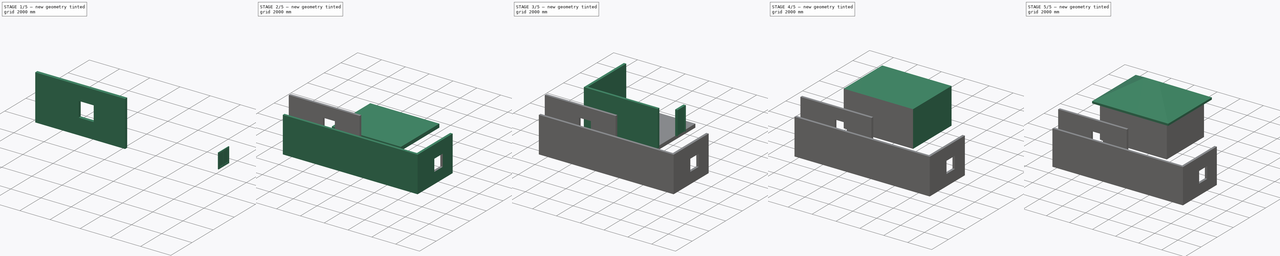
[diagram: build sequence overview — one tinted view per stage of 5, left to right]
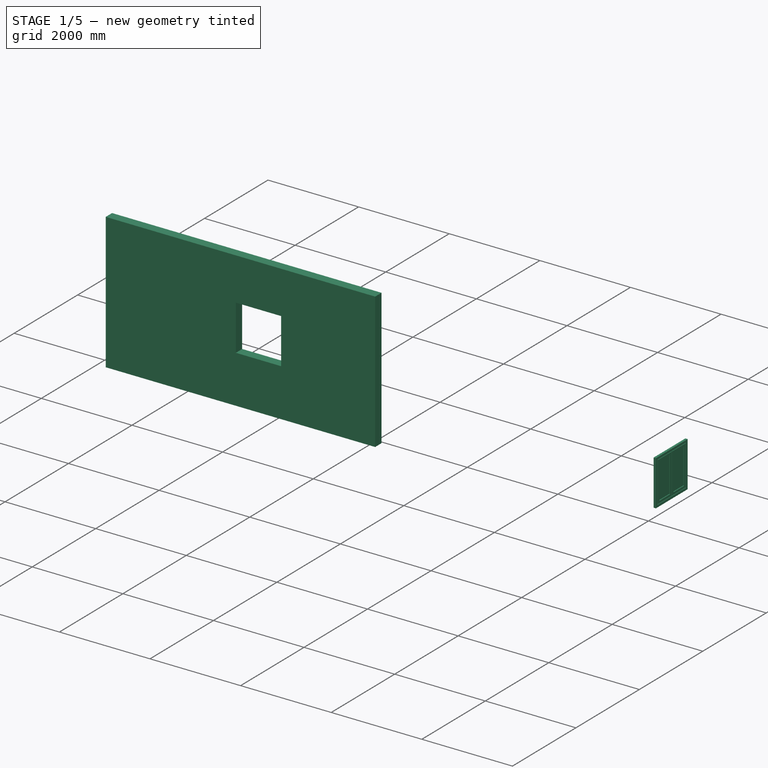
[diagram: stage 1 of 5 — iso view after this stage's code; geometry added in this stage tinted green]
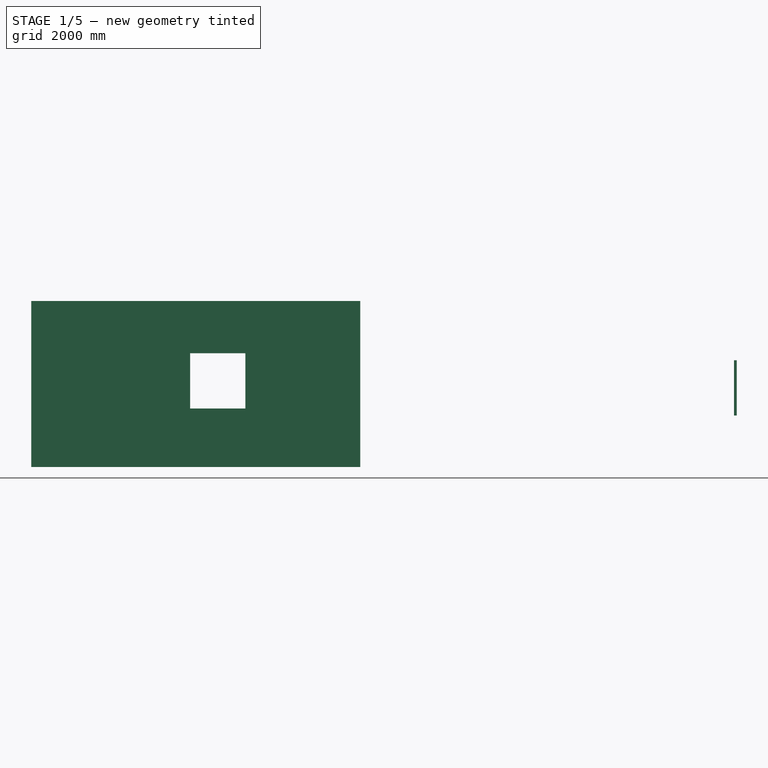
[diagram: stage 1 of 5 — front view after this stage's code; geometry added in this stage tinted green]
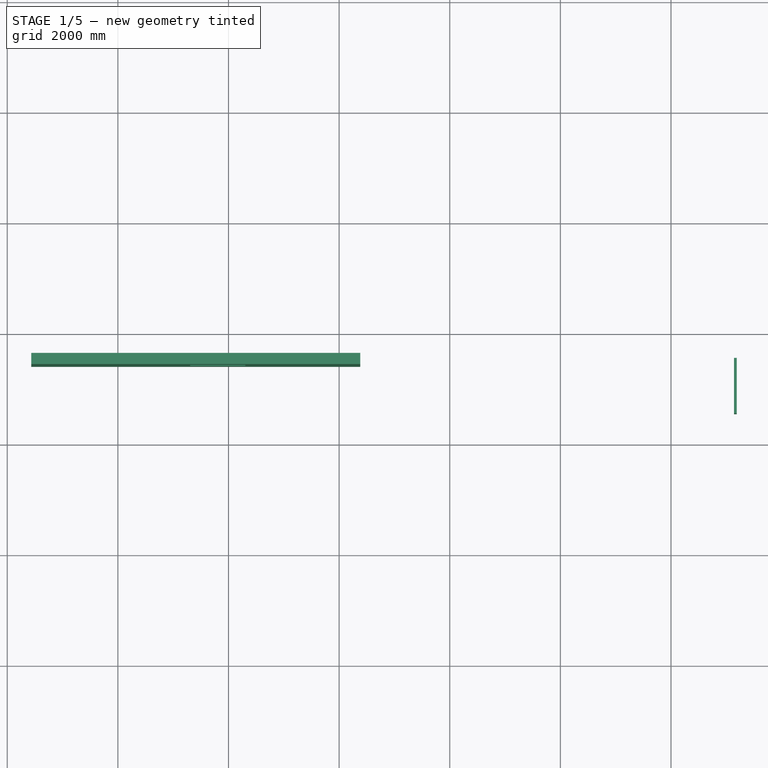
[diagram: stage 1 of 5 — top view after this stage's code; geometry added in this stage tinted green]
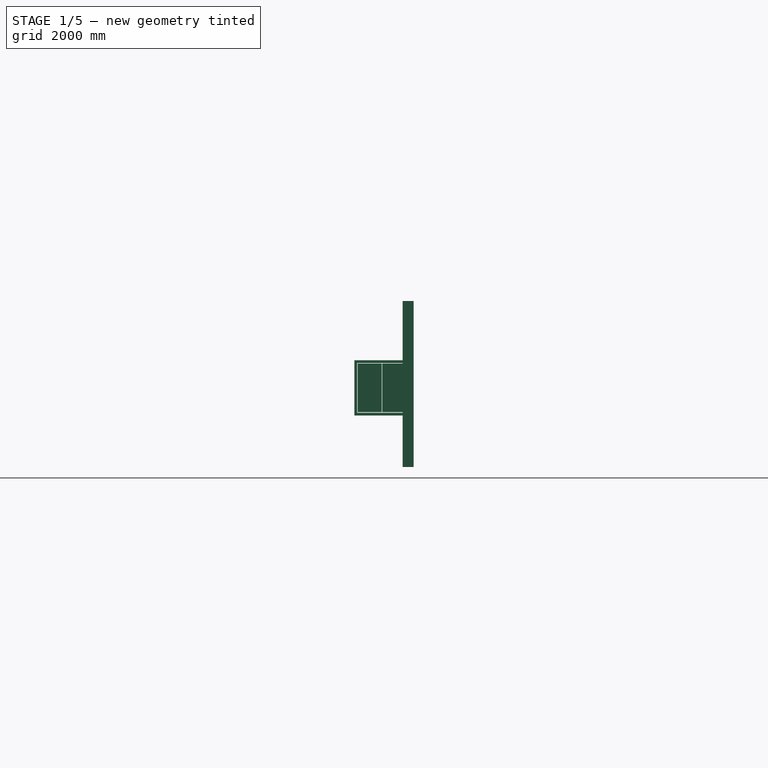
[diagram: stage 1 of 5 — right view after this stage's code; geometry added in this stage tinted green]
FCSTD DOCUMENT  (FreeCAD 0.17R7517 (Git))
Label: teste_A4_017
License: All rights reserved
LicenseURL: http://en.wikipedia.org/wiki/All_rights_reserved
objects: Part::FeaturePython×15, App::FeaturePython×13, Sketcher::SketchObject×10, Drawing::FeatureViewPython×5, App::MaterialObjectPython×4, App::DocumentObjectGroup×3, Part::Part2DObjectPython×3, Part::Feature×2, App::DocumentObjectGroupPython×2, Drawing::FeatureViewAnnotation×1, Part::Chamfer×1, Spreadsheet::Sheet×1, Drawing::FeatureViewSpreadsheet×1, Part::Extrusion×1, Drawing::FeaturePage×1, PartDesign::Body×1, App::Part×1
note: 38 computed .brp shape members not serialized (recipe doc carries the construction recipe); baked Part::Feature solids carry a one-line shape summary decoded from their .brp

FEATURE [Sketcher::SketchObject] Linha_base001
  MapMode = 5
  sketch-geometry (1):
    g0: LineSegment StartX=5263.36 StartY=-5266.51 StartZ=0 EndX=5263.36 EndY=-1266.51 EndZ=0
FEATURE [Sketcher::SketchObject] Sketch001
  MapMode = 5
  Placement = pos=(5263.36,-3461.03,30.4612) rot=(0.57735,0.57735,0.57735;2.0944rad)
  expr: Constraints[56] = Constraints.aro_movel
  expr: Constraints[55] = Constraints.aro_movel
  expr: Constraints[59] = Constraints.aro_movel
  expr: Constraints[58] = Constraints.aro_movel
  expr: Constraints[57] = Constraints.aro_movel
  expr: Constraints[18] = Constraints.aro_exterior
  expr: Constraints[21] = Constraints.aro_exterior
  expr: Constraints[20] = Constraints.aro_exterior
  sketch-geometry (24):
    g0: LineSegment StartX=0 StartY=0 StartZ=0 EndX=1000 EndY=0 EndZ=0
    g1: LineSegment StartX=1000 StartY=0 StartZ=0 EndX=1000 EndY=1000 EndZ=0
    g2: LineSegment StartX=1000 StartY=1000 StartZ=0 EndX=0 EndY=1000 EndZ=0
    g3: LineSegment StartX=0 StartY=1000 StartZ=0 EndX=0 EndY=0 EndZ=0
    g4: LineSegment StartX=50 StartY=50 StartZ=0 EndX=950 EndY=50 EndZ=0
    g5: LineSegment StartX=950 StartY=50 StartZ=0 EndX=950 EndY=950 EndZ=0
    g6: LineSegment StartX=950 StartY=950 StartZ=0 EndX=50 EndY=950 EndZ=0
    g7: LineSegment StartX=50 StartY=950 StartZ=0 EndX=50 EndY=50 EndZ=0
    g8: LineSegment StartX=60 StartY=60 StartZ=0 EndX=495 EndY=60 EndZ=0
    g9: LineSegment StartX=495 StartY=60 StartZ=0 EndX=495 EndY=940 EndZ=0
    g10: LineSegment StartX=495 StartY=940 StartZ=0 EndX=60 EndY=940 EndZ=0
    g11: LineSegment StartX=60 StartY=940 StartZ=0 EndX=60 EndY=60 EndZ=0
    g12: LineSegment StartX=110 StartY=110 StartZ=0 EndX=445 EndY=110 EndZ=0
    g13: LineSegment StartX=445 StartY=110 StartZ=0 EndX=445 EndY=890 EndZ=0
    g14: LineSegment StartX=445 StartY=890 StartZ=0 EndX=110 EndY=890 EndZ=0
    g15: LineSegment StartX=110 StartY=890 StartZ=0 EndX=110 EndY=110 EndZ=0
    g16: LineSegment StartX=505 StartY=60 StartZ=0 EndX=940 EndY=60 EndZ=0
    g17: LineSegment StartX=940 StartY=60 StartZ=0 EndX=940 EndY=940 EndZ=0
    g18: LineSegment StartX=940 StartY=940 StartZ=0 EndX=505 EndY=940 EndZ=0
    g19: LineSegment StartX=505 StartY=940 StartZ=0 EndX=505 EndY=60 EndZ=0
    g20: LineSegment StartX=555 StartY=110 StartZ=0 EndX=890 EndY=110 EndZ=0
    g21: LineSegment StartX=890 StartY=110 StartZ=0 EndX=890 EndY=890 EndZ=0
    g22: LineSegment StartX=890 StartY=890 StartZ=0 EndX=555 EndY=890 EndZ=0
    g23: LineSegment StartX=555 StartY=890 StartZ=0 EndX=555 EndY=110 EndZ=0
  constraints (71):
    c: Coincident(g0,g1)
    c: Coincident(g1,g2)
    c: Coincident(g2,g3)
    c: Coincident(g3,g0)
    c: Horizontal(g0)
    c: Horizontal(g2)
    c: Vertical(g1)
    c: Vertical(g3)
    c: Coincident(g4,g5)
    c: Coincident(g5,g6)
    c: Coincident(g6,g7)
    c: Coincident(g7,g4)
    c: Horizontal(g4)
    c: Horizontal(g6)
    c: Vertical(g5)
    c: Vertical(g7)
    c: DistanceY(g1) = 1000
    c: DistanceX(g0) = 1000
    c: DistanceY(g6,g2) = 50
    c: DistanceX(g2,g6) = 50  'aro_exterior'
    c: DistanceX(g4,g0) = 50
    c: DistanceY(g0,g4) = 50
    c: Coincident(g0,g-1)
    c: Coincident(g8,g9)
    c: Coincident(g9,g10)
    c: Coincident(g10,g11)
    c: Coincident(g11,g8)
    c: Horizontal(g8)
    c: Horizontal(g10)
    c: Vertical(g9)
    c: Vertical(g11)
    c: Coincident(g12,g13)
    c: Coincident(g13,g14)
    c: Coincident(g14,g15)
    c: Coincident(g15,g12)
    c: Horizontal(g12)
    c: Horizontal(g14)
    c: Vertical(g13)
    c: Vertical(g15)
    c: Coincident(g16,g17)
    c: Coincident(g17,g18)
    c: Coincident(g18,g19)
    c: Coincident(g19,g16)
    c: Horizontal(g16)
    c: Horizontal(g18)
    c: Vertical(g17)
    c: Vertical(g19)
    c: Coincident(g20,g21)
    c: Coincident(g21,g22)
    c: Coincident(g22,g23)
    c: Coincident(g23,g20)
    c: Horizontal(g20)
    c: Horizontal(g22)
    c: Vertical(g21)
    c: Vertical(g23)
    c: DistanceY(g8,g12) = 50
    c: DistanceX(g8,g12) = 50
    c: DistanceX(g21,g17) = 50
    c: DistanceY(g21,g17) = 50
    c: DistanceX(g16,g20) = 50
    c: DistanceX(g14,g10) = 50  'aro_movel'
    c: Equal(g22,g14)
    c: DistanceY(g8,g16) = 0
    c: DistanceY(g10,g18) = 0
    c: DistanceX(g4,g8) = 10
    c: DistanceY(g4,g8) = 10
    c: DistanceX(g6,g18) = -10
    c: DistanceY(g6,g18) = -10
    c: DistanceX(g9,g19) = 10
    c: PointOnObject(g13,g22)
    c: PointOnObject(g20,g12)
FEATURE [App::FeaturePython] Section004  label="Section"  # WARN: FeaturePython — macro-defined, semantics opaque (R4)
  OnlySolids = true
  Placement = pos=(0,0,1300) rot=(0,0,1;0rad)
FEATURE [Sketcher::SketchObject] Linha_base002
  MapMode = 5
  sketch-geometry (1):
    g0: LineSegment StartX=-7566.59 StartY=-2489.06 StartZ=0 EndX=-1619.46 EndY=-2489.06 EndZ=0
FEATURE [Sketcher::SketchObject] Sketch002
  MapMode = 5
  Placement = pos=(-4694.64,-2589.06,1056.69) rot=(1,0,0;1.5708rad)
  sketch-geometry (8):
    g0: LineSegment StartX=0 StartY=0 StartZ=0 EndX=1000 EndY=0 EndZ=0
    g1: LineSegment StartX=1000 StartY=0 StartZ=0 EndX=1000 EndY=1000 EndZ=0
    g2: LineSegment StartX=1000 StartY=1000 StartZ=0 EndX=0 EndY=1000 EndZ=0
    g3: LineSegment StartX=0 StartY=1000 StartZ=0 EndX=0 EndY=0 EndZ=0
    g4: LineSegment StartX=50 StartY=50 StartZ=0 EndX=950 EndY=50 EndZ=0
    g5: LineSegment StartX=950 StartY=50 StartZ=0 EndX=950 EndY=950 EndZ=0
    g6: LineSegment StartX=950 StartY=950 StartZ=0 EndX=50 EndY=950 EndZ=0
    g7: LineSegment StartX=50 StartY=950 StartZ=0 EndX=50 EndY=50 EndZ=0
  constraints (23):
    c: Coincident(g0,g1)
    c: Coincident(g1,g2)
    c: Coincident(g2,g3)
    c: Coincident(g3,g0)
    c: Horizontal(g0)
    c: Horizontal(g2)
    c: Vertical(g1)
    c: Vertical(g3)
    c: Coincident(g4,g5)
    c: Coincident(g5,g6)
    c: Coincident(g6,g7)
    c: Coincident(g7,g4)
    c: Horizontal(g4)
    c: Horizontal(g6)
    c: Vertical(g5)
    c: Vertical(g7)
    c: DistanceY(g1) = 1000
    c: DistanceX(g0) = 1000
    c: DistanceY(g6,g2) = 50
    c: DistanceX(g2,g6) = 50
    c: DistanceX(g4,g0) = 50
    c: DistanceY(g0,g4) = 50
    c: Coincident(g0,g-1)
FEATURE [App::MaterialObjectPython] Material002  label="Material"  # material (typed FeaturePython)
FEATURE [App::MaterialObjectPython] Material003  label="Vidro"  # material (typed FeaturePython)
  Material = AuthorAndLicense=(c) 2015 Przemo Firszt (CC-BY 3.0); CardName=Standard Not Defined Material; Density=0 kg/m^3; Description=Vidro; DiffuseColor=(0.7450980392156863, 0.803921568627451, 1.0); Father=None; Name=Vidro; PoissonRatio=0; SpecificPrice=0; UltimateTensileStrength=0 MPa; YoungsModulus=0 MPa
FEATURE [App::DocumentObjectGroupPython] MaterialContainer  label="Materials"  # scripted group (container) (typed FeaturePython)
  Group = -> [Material,Material001,Material002,Material003]
FEATURE [Part::FeaturePython] Window001  label="Window"  # WARN: FeaturePython — macro-defined, semantics opaque (R4)
  Base = -> Sketch001
  GlassMaterial = -> Material003
  Height = 1000
  HoleDepth = 0
  MoveWithHost = true
  Normal = (-1,0,0)
  Placement = pos=(0,0,900) rot=(0,0,1;0rad)
  Preset = 3
  Role = 0
  Width = 1000
  WindowParts = OuterFrame | Frame | Wire0,Wire1 | 50.0 | 75.0 | LeftFrame | Frame | Wire2,Wire3 | 50.0 | 75.0 | LeftGlass | Glass panel | Wire3 | 10.0 | 95.0 | RightFrame | Frame | Wire4,Wire5 | 50.0 | 75.0 | RightGlass | Glass panel | Wire5 | 10.0 | 95.0
FEATURE [App::DocumentObjectGroupPython] Floor  label="Piso"  # scripted group (container) (typed FeaturePython)
  Group = -> [Wall001,Equipment,Chamfer007,Wall002,Component,Space,Wall005,Wall006]
  Height = 0
FEATURE [App::FeaturePython] Section  label="alçado"  # WARN: FeaturePython — macro-defined, semantics opaque (R4)
  Objects = -> [Wall001,Equipment,Chamfer007,Floor]
  OnlySolids = true
  Placement = pos=(-100,2441.84,1576.92) rot=(0.57735,-0.57735,-0.57735;2.0944rad)
FEATURE [Drawing::FeatureViewPython] View  label="alçado"  # drawing view (typed FeaturePython)
  FontSize = 12
  LineWidth = 0.1
  RenderingMode = 1
  Rotation = 90
  Scale = 0.01
  ShowCut = true
  ShowFill = false
  Source = -> Section
  ViewResult = <blob: 7935 chars omitted>
  Visible = true
  X = 100
  Y = 100
FEATURE [App::FeaturePython] Section001  label="corte"  # WARN: FeaturePython — macro-defined, semantics opaque (R4)
  Objects = -> [Window,Wall001,Dimension001,Dimension002,Equipment,Chamfer007,Floor,Roof]
  OnlySolids = true
  Placement = pos=(0,2891.51,980) rot=(0.57735,-0.57735,0.57735;2.0944rad)
FEATURE [Drawing::FeatureViewPython] View001  label="corte"  # drawing view (typed FeaturePython)
  FontSize = 5
  LineWidth = 0.1
  RenderingMode = 1
  Rotation = 90
  Scale = 0.01
  ShowCut = false
  ShowFill = true
  Source = -> Section001
  ViewResult = <blob: 4970 chars omitted>
  Visible = true
  X = 175
  Y = 100
FEATURE [App::FeaturePython] Section002  label="planta"  # WARN: FeaturePython — macro-defined, semantics opaque (R4)
  Objects = -> [Wall001,Equipment,Chamfer007,Floor]
  OnlySolids = true
  Placement = pos=(0,0,1000) rot=(0,0,1;0rad)
FEATURE [Drawing::FeatureViewPython] View002  label="planta"  # drawing view (typed FeaturePython)
  FontSize = 12
  LineWidth = 0.15
  RenderingMode = 1
  Rotation = 0
  Scale = 0.01
  ShowCut = false
  ShowFill = true
  Source = -> Section002
  ViewResult = <blob: 2002 chars omitted>
  Visible = true
  X = 100
  Y = 180
FEATURE [Part::Part2DObjectPython] Shape2DView  # Draft 2D object (typed FeaturePython)
  Base = -> Section002
  HiddenLines = false
  Projection = (0,0,1)
  ProjectionMode = 0
  SegmentLength = 0.05
  Tessellation = false
FEATURE [App::FeaturePython] Section003  label="alçado1"  # WARN: FeaturePython — macro-defined, semantics opaque (R4)
  Objects = -> [Roof,Floor]
  OnlySolids = true
  Placement = pos=(-3000,-250,2971.13) rot=(0.57735,-0.57735,0.57735;2.0944rad)
FEATURE [Drawing::FeatureViewPython] View004  label="alçado1"  # drawing view (typed FeaturePython)
  FontSize = 12
  LineWidth = 0.15
  RenderingMode = 1
  Rotation = 90
  Scale = 0.01
  ShowCut = false
  ShowFill = false
  Source = -> Section003
  ViewResult = <g id="View004" transform="rotate(90.0,175.0,180.0) translate(175.0,180.0) scale(0.01,0.01)">\n<g   stroke="rgb(0, 0, 0)"\n   stroke-width="15.0px"\n   stroke-linecap="butt"\n   stroke-linejoin="miter"\n   fill="none"\n   transform="scale(1,-1)"\n  >\n<path id= "1" d=" M 0 100 L -3000 100 " />\n<path id= "2" d=" M 0 100 L 0 -100 " />\n<path id= "3" d=" M -3000 100 L -3000 -100 " />\n<path id= "4" d=" M 0 -100 L -3000 -100 " />\n<path id= "5" d=" M 0 100 L 0 -6100 " />\n<path id= "6" d=" M 0 -6100 L -3000 -6100 " />\n<path id= "7" d=" M -3000 100 L -3000 -6100 " />\n<path id= "8" d=" M 0 100 L -3000 100 " />\n<path id= "9" d=" M 0 -100 L 300 -100 " />\n<path id= "10" d=" M 0 -5900 L 300 -5900 " />\n<path id= "11" d=" M 300 -100 L 300 -5900 " />\n</g>\n</g>
  Visible = true
  X = 175
  Y = 180
FEATURE [Drawing::FeaturePage] Page
  Group = -> [Annotation,View,View001,View002,View003,View004,Viewdimension]
  Template = <path>
FEATURE [Part::FeaturePython] Window002  label="Window"  # WARN: FeaturePython — macro-defined, semantics opaque (R4)
  Base = -> Sketch002
  BaseMaterial = -> Material002
  GlassMaterial = -> Material003
  Height = 1000
  HoleDepth = 0
  MoveWithHost = true
  Normal = (0,1,0)
  Preset = 1
  Role = 0
  Width = 1000
  WindowParts = OuterFrame | Frame | Wire0,Wire1 | 50.0 | 50.0 | Glass | Glass panel | Wire1 | 5.0 | 75.0
FEATURE [Part::FeaturePython] Wall007  label="Wall"  # WARN: FeaturePython — macro-defined, semantics opaque (R4)
  Align = 2
  Base = -> Linha_base002
  Face = 0
  Height = 3000
  Length = 5947.13
  MoveWithHost = false
  Normal = (0,0,1)
  Role = 0
  Subtractions = -> [Window002]
  Width = 200
FEATURE [PartDesign::Body] Body
  Origin = -> BodyOrigin
FEATURE [App::Part] Part
  Group = -> [Wall007,Body,Roof,Shape2DView,Floor,Grupo,Schedule001]
  License = CC BY 3.0
  LicenseURL = http://creativecommons.org/licenses/by/3.0/
  Origin = -> PartOrigin
note: 1 file-system path scrubbed to <path> (originals preserved in the JSON sidecar)
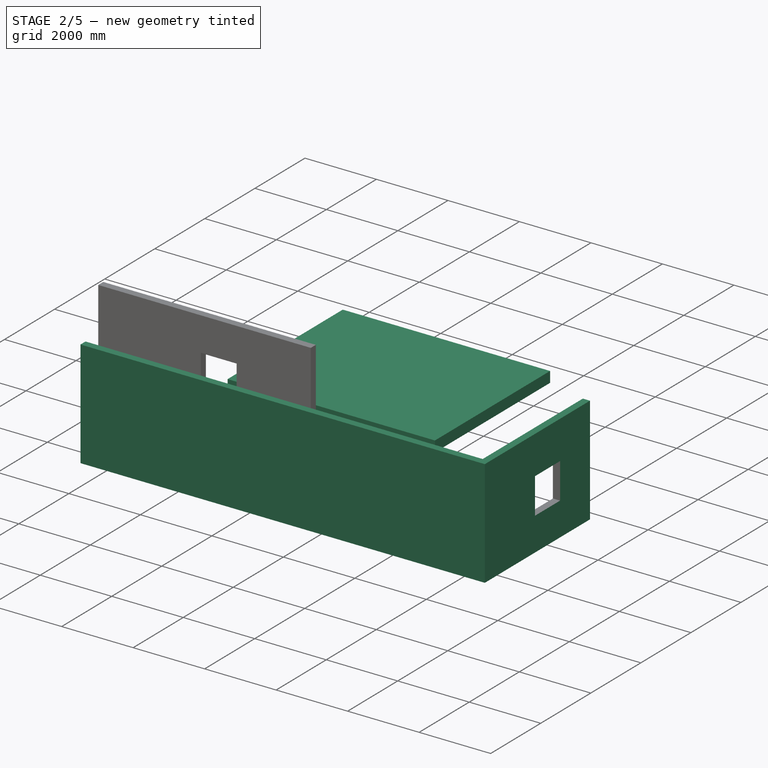
[diagram: stage 2 of 5 — iso view after this stage's code; geometry added in this stage tinted green]
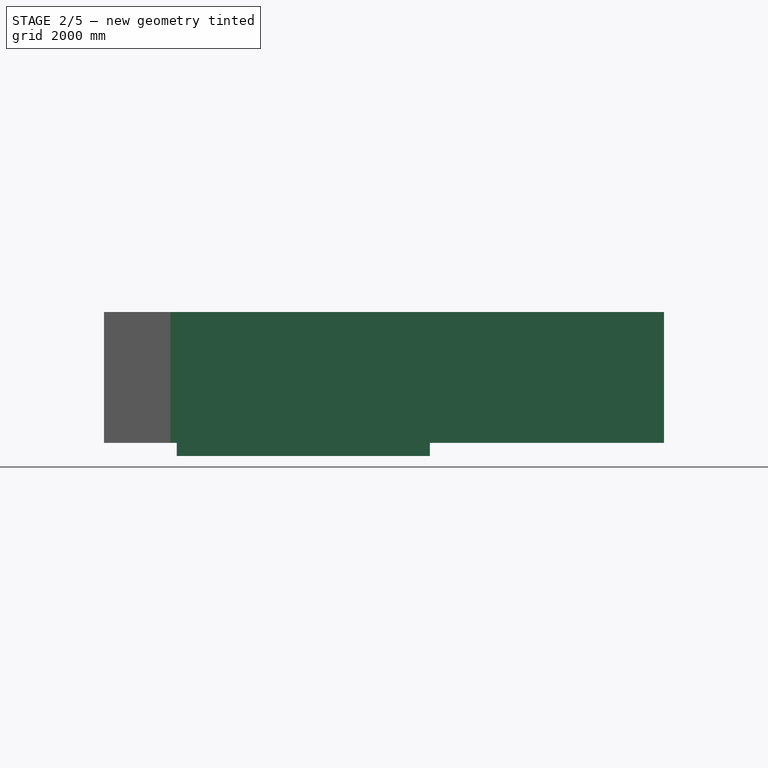
[diagram: stage 2 of 5 — front view after this stage's code; geometry added in this stage tinted green]
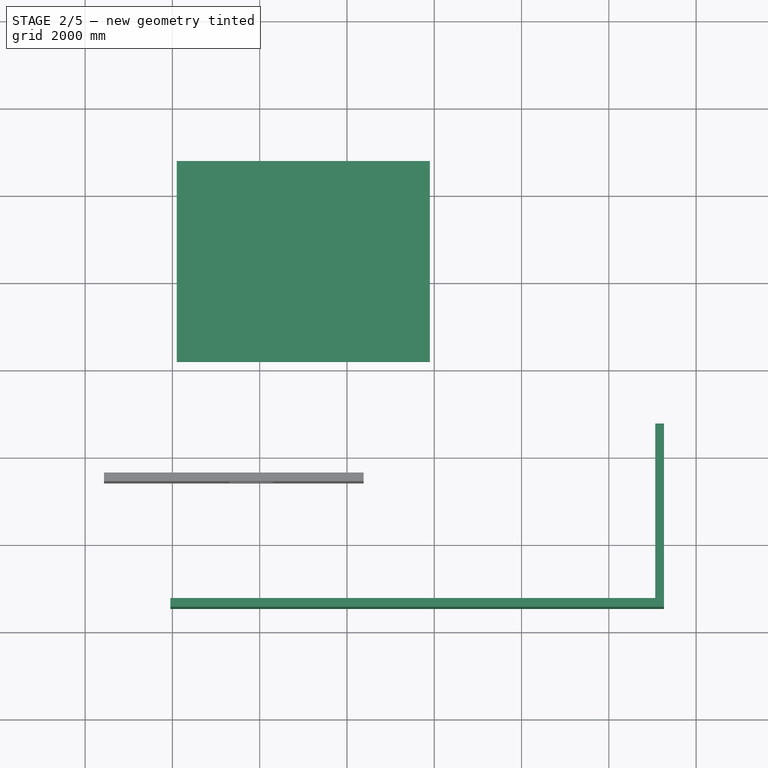
[diagram: stage 2 of 5 — top view after this stage's code; geometry added in this stage tinted green]
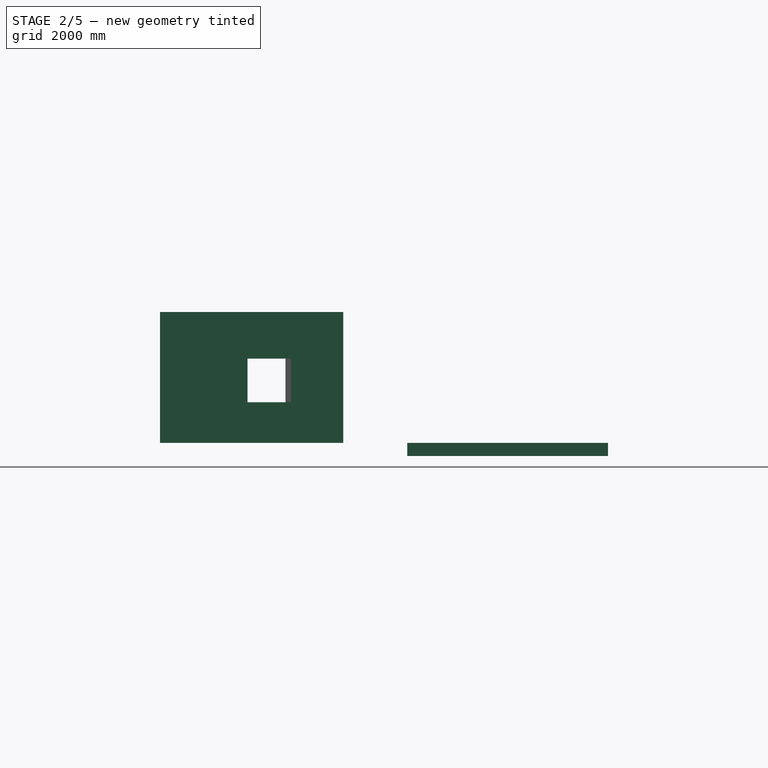
[diagram: stage 2 of 5 — right view after this stage's code; geometry added in this stage tinted green]
FEATURE [Part::Part2DObjectPython] Rectangle001  # Draft 2D object (typed FeaturePython)
  ChamferSize = 0
  Columns = 1
  FilletRadius = 0
  Height = -4600
  Length = 5800
  MakeFace = true
  Placement = pos=(-5900,4800,0) rot=(0,0,1;0rad)
  Rows = 1
FEATURE [Part::Extrusion] Extrusion
  Base = -> Rectangle001
  Dir = (0,0,-300)
  Solid = true
FEATURE [Part::FeaturePython] Component  label="Laje"  # WARN: FeaturePython — macro-defined, semantics opaque (R4)
  Base = -> Extrusion
  MoveWithHost = false
  Role = 20
FEATURE [Drawing::FeatureViewPython] Viewdimension  # drawing view (typed FeaturePython)
  Direction = (0,0,0)
  FillStyle = 0
  FontSize = 12
  LineStyle = 0
  LineWidth = 0.09
  Rotation = 0
  Scale = 0.01
  Visible = true
  X = 100
  Y = 180
FEATURE [Sketcher::SketchObject] Linha_base
  MapMode = 5
  sketch-geometry (1):
    g0: LineSegment StartX=-6047.55 StartY=-5366.51 StartZ=0 EndX=5263.36 EndY=-5366.51 EndZ=0
FEATURE [Part::FeaturePython] Wall005  label="Wall"  # WARN: FeaturePython — macro-defined, semantics opaque (R4)
  Align = 2
  Base = -> Linha_base
  Face = 0
  Height = 3000
  Length = 11310.9
  MoveWithHost = false
  Normal = (0,0,1)
  Role = 0
  Width = 200
FEATURE [Part::FeaturePython] Wall006  label="Wall"  # WARN: FeaturePython — macro-defined, semantics opaque (R4)
  Align = 1
  Base = -> Linha_base001
  Face = 0
  Height = 3000
  Length = 4000
  MoveWithHost = false
  Normal = (0,0,1)
  Role = 0
  Subtractions = -> [Window001]
  Width = 200
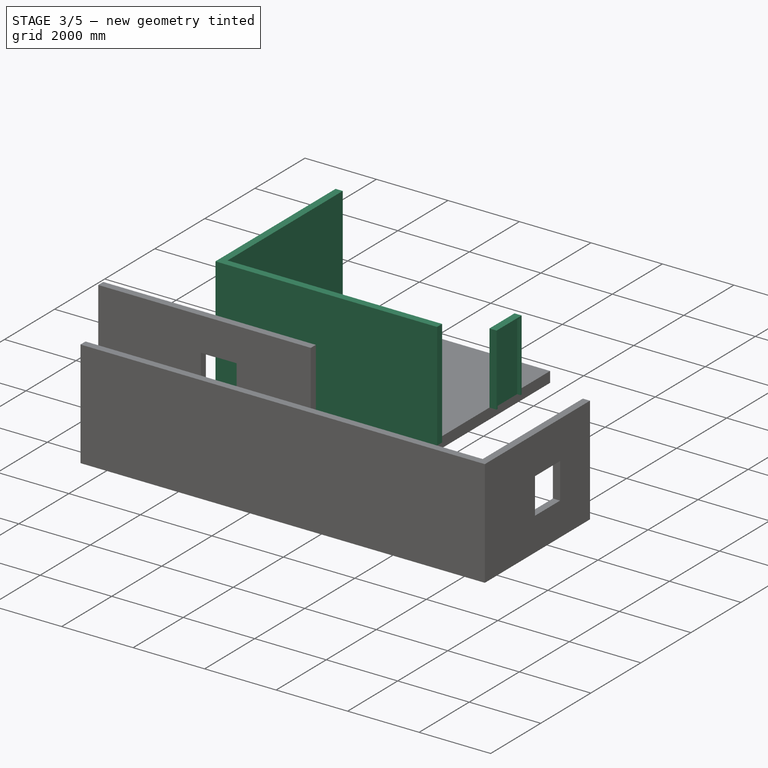
[diagram: stage 3 of 5 — iso view after this stage's code; geometry added in this stage tinted green]
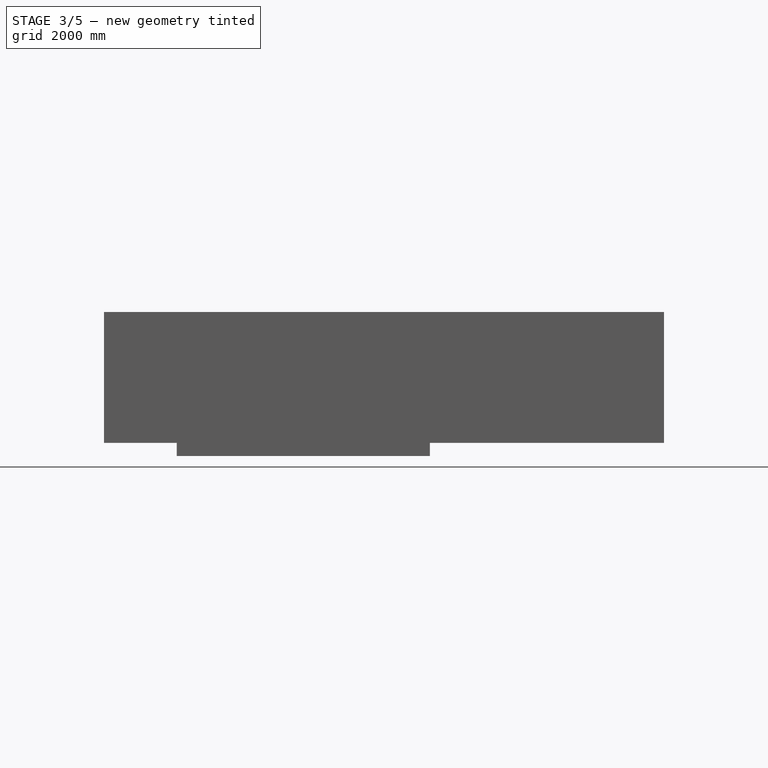
[diagram: stage 3 of 5 — front view after this stage's code; geometry added in this stage tinted green]
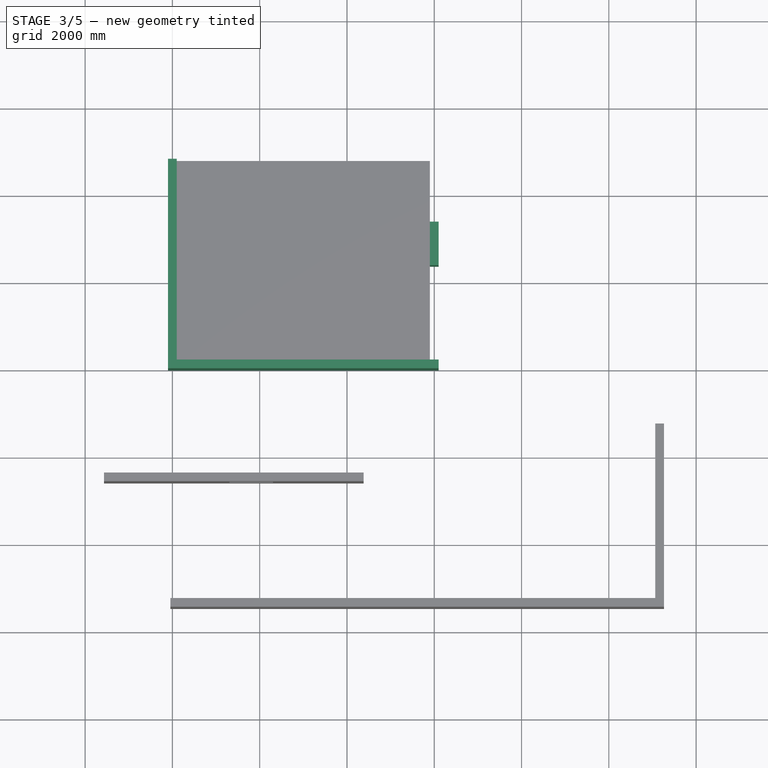
[diagram: stage 3 of 5 — top view after this stage's code; geometry added in this stage tinted green]
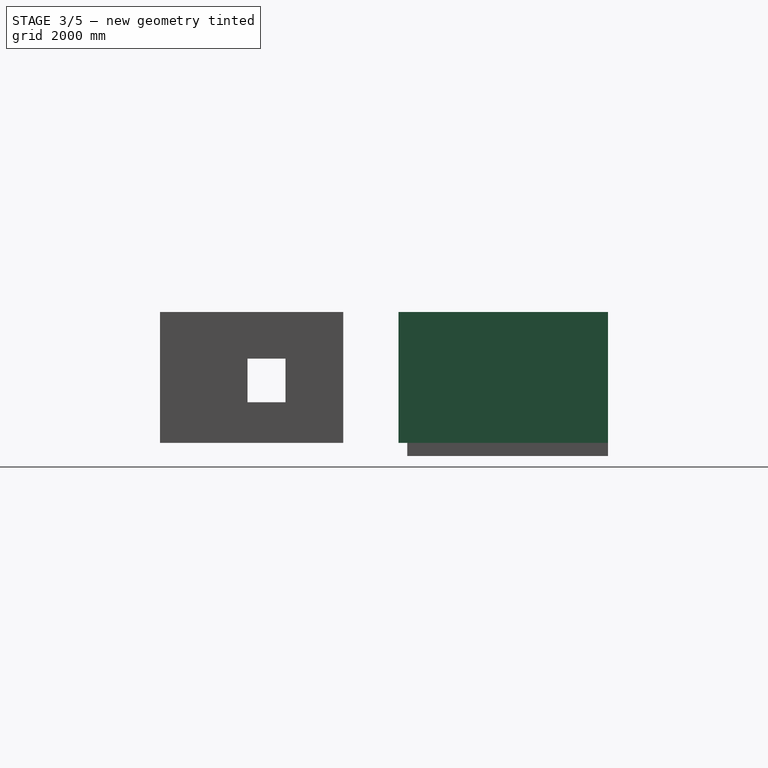
[diagram: stage 3 of 5 — right view after this stage's code; geometry added in this stage tinted green]
FEATURE [Sketcher::SketchObject] Sketch
  MapMode = 5
  Placement = pos=(100,2378.06,50.1186) rot=(0.57735,0.57735,0.57735;2.0944rad)
  expr: Constraints[20] = Constraints.aro
  expr: Constraints[19] = Constraints.aro
  sketch-geometry (8):
    g0: LineSegment StartX=0 StartY=0 StartZ=0 EndX=1000 EndY=0 EndZ=0
    g1: LineSegment StartX=1000 StartY=0 StartZ=0 EndX=1000 EndY=2000 EndZ=0
    g2: LineSegment StartX=1000 StartY=2000 StartZ=0 EndX=0 EndY=2000 EndZ=0
    g3: LineSegment StartX=0 StartY=2000 StartZ=0 EndX=0 EndY=0 EndZ=0
    g4: LineSegment StartX=40 StartY=0 StartZ=0 EndX=960 EndY=0 EndZ=0
    g5: LineSegment StartX=960 StartY=0 StartZ=0 EndX=960 EndY=1960 EndZ=0
    g6: LineSegment StartX=960 StartY=1960 StartZ=0 EndX=40 EndY=1960 EndZ=0
    g7: LineSegment StartX=40 StartY=1960 StartZ=0 EndX=40 EndY=0 EndZ=0
  constraints (23):
    c: Coincident(g0,g1)
    c: Coincident(g1,g2)
    c: Coincident(g2,g3)
    c: Coincident(g3,g0)
    c: Horizontal(g0)
    c: Horizontal(g2)
    c: Vertical(g1)
    c: Vertical(g3)
    c: Coincident(g4,g5)
    c: Coincident(g5,g6)
    c: Coincident(g6,g7)
    c: Coincident(g7,g4)
    c: Horizontal(g4)
    c: Horizontal(g6)
    c: Vertical(g5)
    c: Vertical(g7)
    c: DistanceY(g1) = 2000
    c: DistanceX(g0) = 1000
    c: DistanceY(g6,g2) = 40  'aro'
    c: DistanceX(g2,g6) = 40
    c: DistanceX(g4,g0) = 40
    c: DistanceY(g0,g4) = 0
    c: Coincident(g0,g-1)
FEATURE [App::MaterialObjectPython] Material  label="Faia"  # material (typed FeaturePython)
  Material = AuthorAndLicense=(c) 2015 Bernd Hahnebach (CC-BY 3.0); CardName=Standard Wood Material; Density=700 kg/m^3; Description=A standard construction wood; DiffuseColor=(1.0, 0.6666666666666666, 0.0); Father=Aggregate; Name=Faia; PoissonRatio=0.05; ProductURL=http://en.wikipedia.org/wiki/Wood; YoungsModulus=12000 MPa
FEATURE [Part::FeaturePython] Window  label="Porta"  # WARN: FeaturePython — macro-defined, semantics opaque (R4)
  Base = -> Sketch
  BaseMaterial = -> Material
  Height = 2000
  HoleDepth = 0
  MoveWithHost = true
  Normal = (-1,0,0)
  Placement = pos=(0,0,-50.1186) rot=(0,0,1;0rad)
  Preset = 6
  Role = 1
  Width = 1000
  WindowParts = OuterFrame | Frame | Wire0,Wire1 | 200 | 0 | Door | Solid panel | Wire1 | 50 | 100
FEATURE [Sketcher::SketchObject] Tra__o_da_Parede001
  MapMode = 5
  sketch-geometry (1):
    g0: LineSegment StartX=-100 StartY=5000 StartZ=0 EndX=-6100 EndY=5000 EndZ=0
  constraints (3):
    c: DistanceX(g0) = -100
    c: DistanceY(g0) = 5000
    c: DistanceX(g0) = -6000
FEATURE [Sketcher::SketchObject] Tra__o_da_Parede002
  MapMode = 5
  sketch-geometry (1):
    g0: LineSegment StartX=100 StartY=0 StartZ=0 EndX=-6100 EndY=0 EndZ=0
FEATURE [Part::FeaturePython] Wall003  label="Wall"  # WARN: FeaturePython — macro-defined, semantics opaque (R4)
  Align = 0
  Base = -> Tra__o_da_Parede002
  Face = 0
  Height = 3000
  Length = 6200
  MoveWithHost = false
  Normal = (0,0,1)
  Role = 0
  Width = 200
FEATURE [Sketcher::SketchObject] Tra__o_da_Parede004
  MapMode = 5
  sketch-geometry (1):
    g0: LineSegment StartX=-6100 StartY=200 StartZ=0 EndX=-6100 EndY=4800 EndZ=0
FEATURE [Part::FeaturePython] Wall004  label="Wall"  # WARN: FeaturePython — macro-defined, semantics opaque (R4)
  Align = 0
  Base = -> Tra__o_da_Parede004
  Face = 0
  Height = 3000
  Length = 4600
  MoveWithHost = false
  Normal = (0,0,1)
  Role = 0
  Width = 200
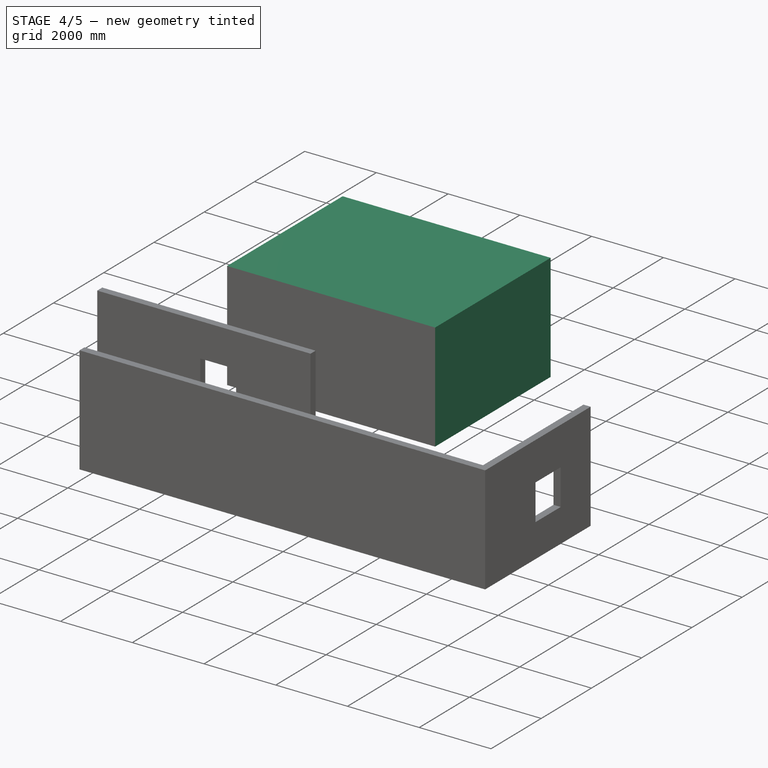
[diagram: stage 4 of 5 — iso view after this stage's code; geometry added in this stage tinted green]
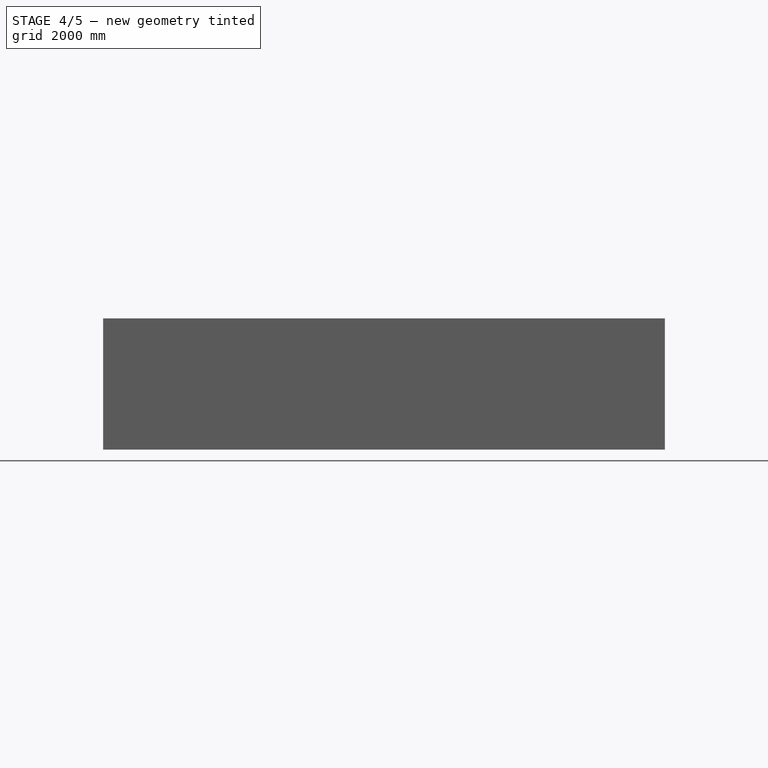
[diagram: stage 4 of 5 — front view after this stage's code; geometry added in this stage tinted green]
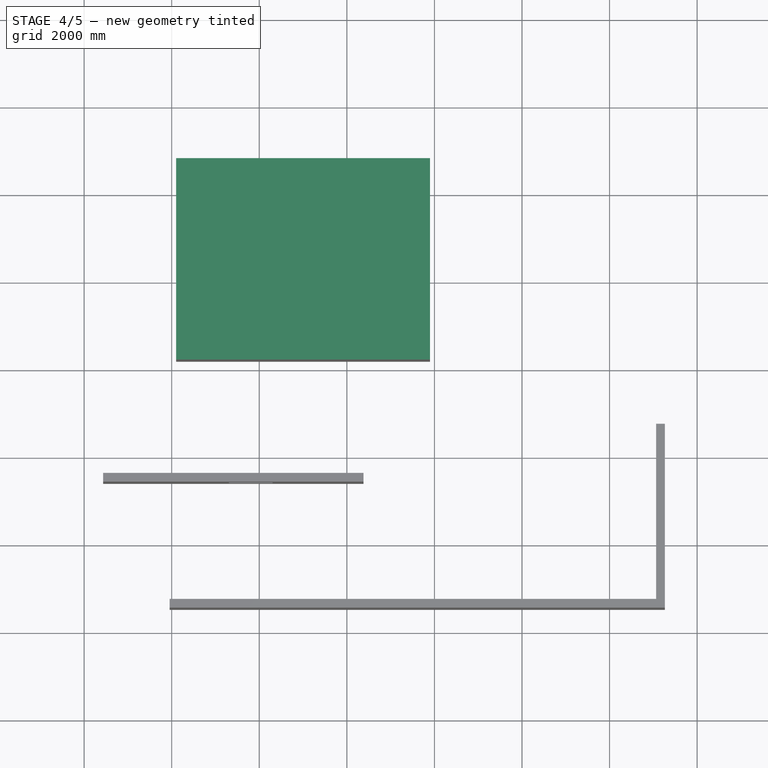
[diagram: stage 4 of 5 — top view after this stage's code; geometry added in this stage tinted green]
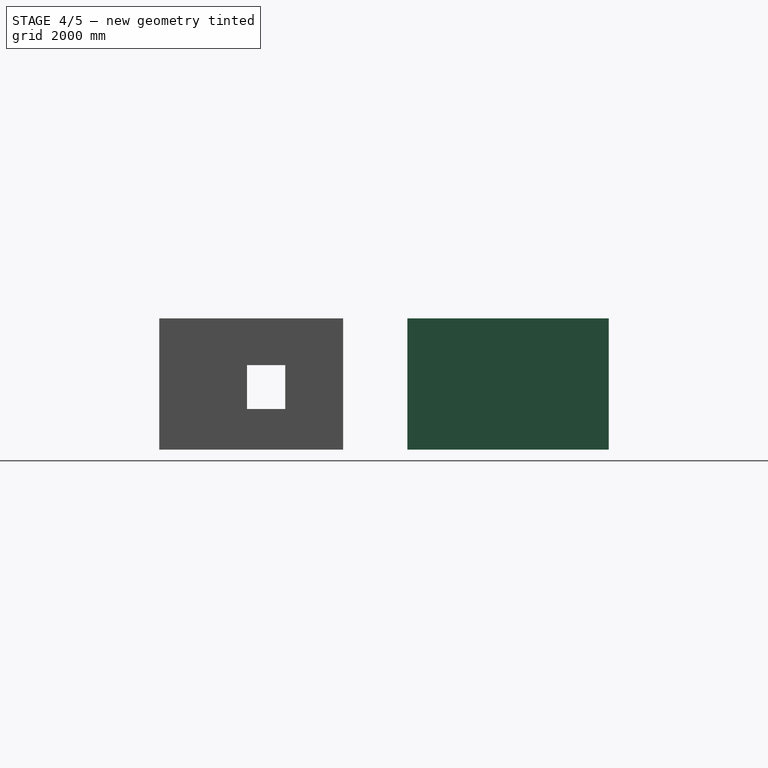
[diagram: stage 4 of 5 — right view after this stage's code; geometry added in this stage tinted green]
FEATURE [Drawing::FeatureViewAnnotation] Annotation
  Font = Sans
  Rotation = 0
  Scale = 3
  Text = Alçado
  ViewResult = <g transform="translate(50,105) rotate(0)">\n<text id="Annotation"\n font-family="Sans"\n font-size="3"\n fill="#000000">\n<tspan x="0" dy="1em">Alçado</tspan>\n</text>\n</g>
  Visible = true
  X = 50
  Y = 105
FEATURE [Sketcher::SketchObject] Tra__o_da_Parede
  MapMode = 5
  sketch-geometry (1):
    g0: LineSegment StartX=0 StartY=0 StartZ=0 EndX=0 EndY=5000 EndZ=0
FEATURE [Part::FeaturePython] Wall  # WARN: FeaturePython — macro-defined, semantics opaque (R4)
  Align = 2
  Base = -> Tra__o_da_Parede
  Face = 0
  Height = 3000
  Length = 5000
  MoveWithHost = false
  Normal = (0,0,1)
  Role = 0
  Width = 200
FEATURE [Part::FeaturePython] Wall001  label="Wall"  # WARN: FeaturePython — macro-defined, semantics opaque (R4)
  Align = 2
  Base = -> Wall
  Face = 0
  Height = 3000
  Length = 0
  MoveWithHost = false
  Normal = (0,0,0)
  Role = 0
  Subtractions = -> [Window]
  Width = 200
FEATURE [App::MaterialObjectPython] Material001  label="Tijolo"  # material (typed FeaturePython)
  Material = AuthorAndLicense=(c) 2015 Przemo Firszt (CC-BY 3.0); CardName=Standard Not Defined Material; Density=0 kg/m^3; Description=This is a not defined material; DiffuseColor=(0.6666666666666666, 0.0, 0.0); Father=None; Name=Tijolo; PoissonRatio=0; SpecificPrice=0; UltimateTensileStrength=0 MPa; YoungsModulus=0 MPa
FEATURE [Part::FeaturePython] Wall002  label="Wall"  # WARN: FeaturePython — macro-defined, semantics opaque (R4)
  Additions = -> [Wall001,Wall004,Wall003]
  Align = 1
  Base = -> Tra__o_da_Parede001
  BaseMaterial = -> Material001
  Face = 0
  Height = 3000
  Length = 6000
  MoveWithHost = true
  Normal = (0,0,1)
  Role = 0
  Width = 200
FEATURE [Part::FeaturePython] Space  label="Sala"  # WARN: FeaturePython — macro-defined, semantics opaque (R4)
  Area = 2.668e+07
  Boundaries = -> [Component,Wall002]
  FloorThickness = 0
  MoveWithHost = false
  Role = 0
  SpaceType = -1
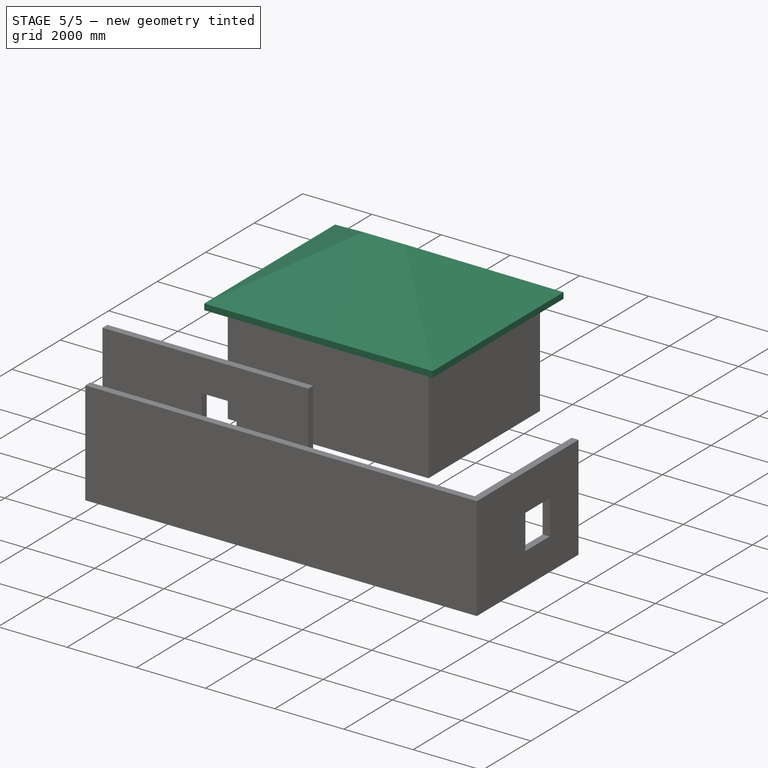
[diagram: stage 5 of 5 — iso view after this stage's code; geometry added in this stage tinted green]
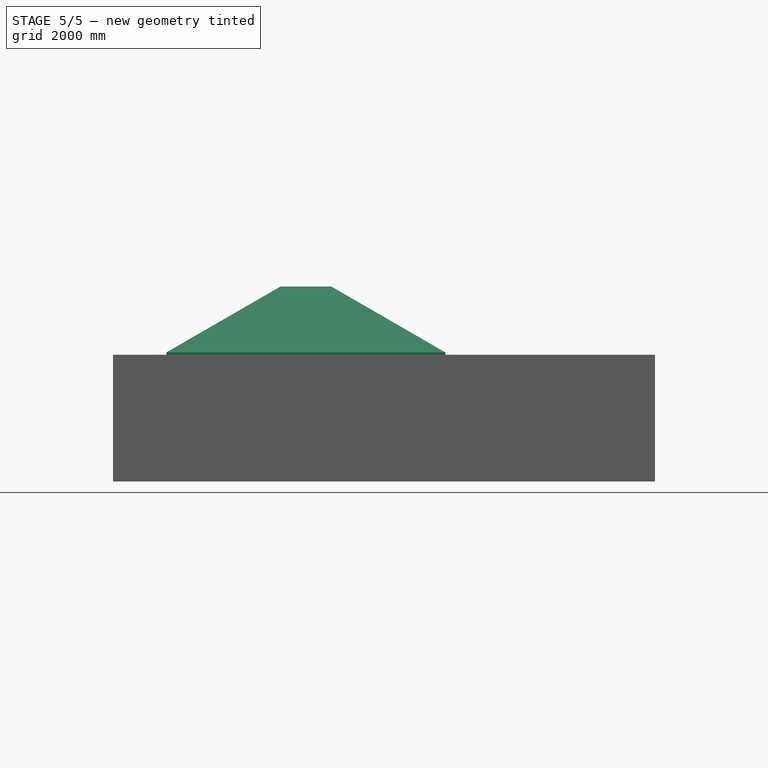
[diagram: stage 5 of 5 — front view after this stage's code; geometry added in this stage tinted green]
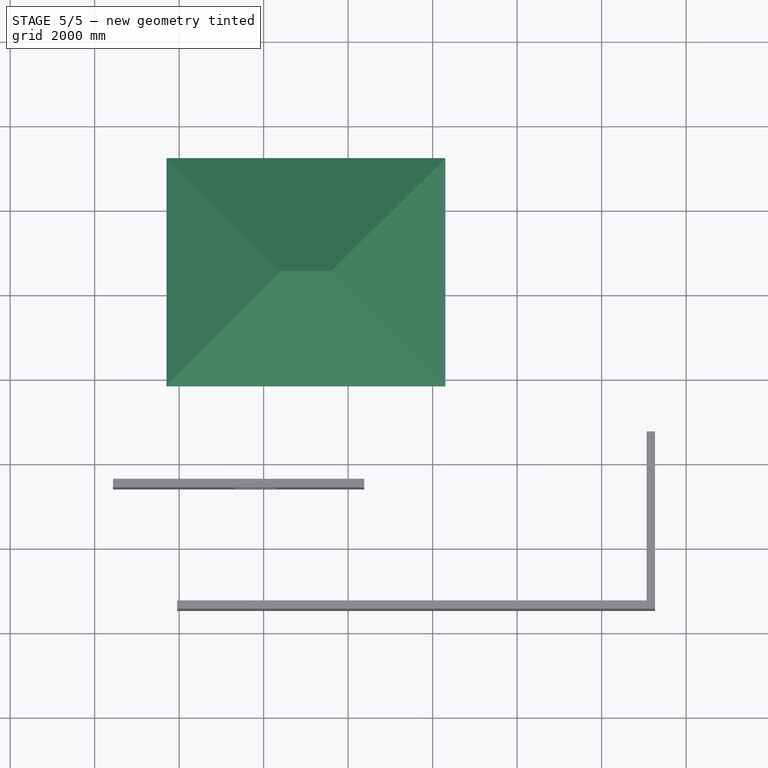
[diagram: stage 5 of 5 — top view after this stage's code; geometry added in this stage tinted green]
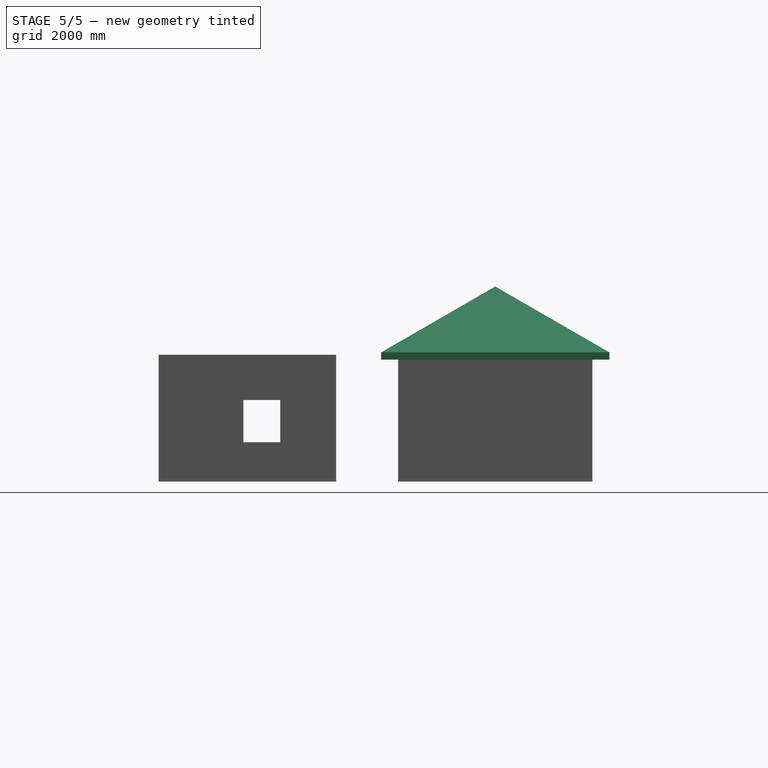
[diagram: stage 5 of 5 — right view after this stage's code; geometry added in this stage tinted green]
FEATURE [App::FeaturePython] Dimension001  # Draft dimension (typed FeaturePython)
  Dimline = (419.323,3338.06,1960)
  Direction = (0,0,0)
  Distance = 1000
  End = (100,3338.06,3000)
  Normal = (0,-1,0)
  Start = (100,3338.06,2000)
FEATURE [App::FeaturePython] Dimension002  # Draft dimension (typed FeaturePython)
  Dimline = (419.323,3338.06,2000)
  Direction = (0,0,0)
  Distance = 2000
  End = (100,3378.06,2000)
  LinkedGeometry = -> [Window]
  Normal = (0,-1,0)
  Start = (100,3378.06,0)
  Support = -> Window
FEATURE [App::FeaturePython] Dimension  # Draft dimension (typed FeaturePython)
  Dimline = (468.075,4425.11,0)
  Direction = (0,0,0)
  Distance = 1621.94
  End = (100,5000,0)
  LinkedGeometry = -> [Wall001]
  Normal = (0,0,1)
  Start = (100,3378.06,0)
  Support = -> Wall001
FEATURE [App::FeaturePython] Dimension003  # Draft dimension (typed FeaturePython)
  Dimline = (468.075,3378.06,0)
  Direction = (0,0,0)
  Distance = 2378.06
  End = (100,2378.06,0)
  LinkedGeometry = -> [Wall001]
  Normal = (0,0,1)
  Start = (100,0,0)
  Support = -> Wall001
FEATURE [App::FeaturePython] Dimension004  # Draft dimension (typed FeaturePython)
  Dimline = (468.075,3378.06,0)
  Direction = (0,0,0)
  Distance = 1000
  End = (100,2378.06,0)
  Normal = (0,0,1)
  Start = (100,3378.06,0)
FEATURE [App::DocumentObjectGroup] Grupo001  label="planta"
  Group = -> [Dimension,Dimension003,Dimension004]
FEATURE [App::FeaturePython] Dimension005  # Draft dimension (typed FeaturePython)
  Dimline = (-100,3821.74,-250.314)
  Direction = (0,0,0)
  Distance = 1621.94
  End = (-100,3378.06,0)
  Normal = (-1,0,0)
  Start = (-100,5000,0)
FEATURE [App::FeaturePython] Dimension006  # Draft dimension (typed FeaturePython)
  Dimline = (-100,3378.06,-250.314)
  Direction = (0,0,0)
  Distance = 1000
  End = (-100,2378.06,0)
  Normal = (-1,0,0)
  Start = (-100,3378.06,0)
FEATURE [App::FeaturePython] Dimension007  # Draft dimension (typed FeaturePython)
  Dimline = (-100,2378.06,-250.314)
  Direction = (0,0,0)
  Distance = 2378.06
  End = (-100,0,0)
  Normal = (-1,0,0)
  Start = (-100,2378.06,0)
FEATURE [App::DocumentObjectGroup] Grupo002  label="alçado"
  Group = -> [Dimension005,Dimension006,Dimension007]
FEATURE [App::DocumentObjectGroup] Grupo  label="cotas"
  Group = -> [Dimension001,Dimension002,Grupo001,Grupo002]
FEATURE [Part::Feature] Compound001001  label="Compound001"
  shape: bbox 609.1 x 558 x 955.2 mm, 70 faces, 2 solids (baked)
FEATURE [Part::FeaturePython] Equipment  label="Fauteil Ikea"  # WARN: FeaturePython — macro-defined, semantics opaque (R4)
  Base = -> Compound001001
  MoveWithHost = true
  Placement = pos=(-385.026,2527.11,0) rot=(0,0,1;0rad)
  Role = 0
FEATURE [Part::Feature] Chamfer008  label="Europalette"
  Placement = pos=(0,0,-144) rot=(0,0,1;0rad)
  shape: bbox 1200 x 800 x 144 mm, 66 faces (baked)
FEATURE [Part::Chamfer] Chamfer007  label="EuropaletteCham"
  Base = -> Chamfer008
  Edges = 12 edges r=10: [Edge7,Edge11,Edge46,Edge86,Edge164,Edge166,Edge167,Edge172,Edge179,Edge181,Edge184,Edge193]
  Placement = pos=(-2402.48,2497.76,144) rot=(0,0,1;0rad)
FEATURE [Spreadsheet::Sheet] Schedule001
  cells = A1=Quantities schedule; A2=Project: teste_A4; A3=Date: Wed Jan 06 12:53:44 2016; B5=Material; C5=Description; D5=Finish; E5=Item; F5=Volume (m³); G5=Unit price (€/m³); H5=Total price (€); A7=1. Walls; B9=Tijolo; C9=This is a not defined material; E9=Wall; F9=12.56; G9=0; H9==F9 * G9; E10=Total; F10=12.56; G10=0; H10==F10 * G10; A12=2. Miscellaneous
FEATURE [Drawing::FeatureViewSpreadsheet] View003  label="tabela"
  CellEnd = H12
  CellStart = A1
  Font = Sans
  FontSize = 12
  LineWidth = 0.1
  Rotation = 0
  Scale = 0.15
  Source = -> Schedule001
  ViewResult = <blob: 127692 chars omitted>
  Visible = true
  X = 25
  Y = 200
FEATURE [Part::Part2DObjectPython] Rectangle  # Draft 2D object (typed FeaturePython)
  ChamferSize = 0
  Columns = 1
  FilletRadius = 0
  Height = 5000
  Length = 6200
  MakeFace = true
  Placement = pos=(-6100,0,3000) rot=(0,0,1;0rad)
  Rows = 1
FEATURE [Part::FeaturePython] Roof  label="Telhado"  # WARN: FeaturePython — macro-defined, semantics opaque (R4)
  Angles = [30,30,30,30]
  Base = -> Rectangle
  Face = 1
  Heights = [1443.38,1443.38,1443.38,1443.38]
  IdRel = [0,0,0,0]
  MoveWithHost = false
  Overhang = [200,200,200,200]
  Role = 0
  Runs = [2500,2500,2500,2500]
  Thickness = [150,150,150,150]
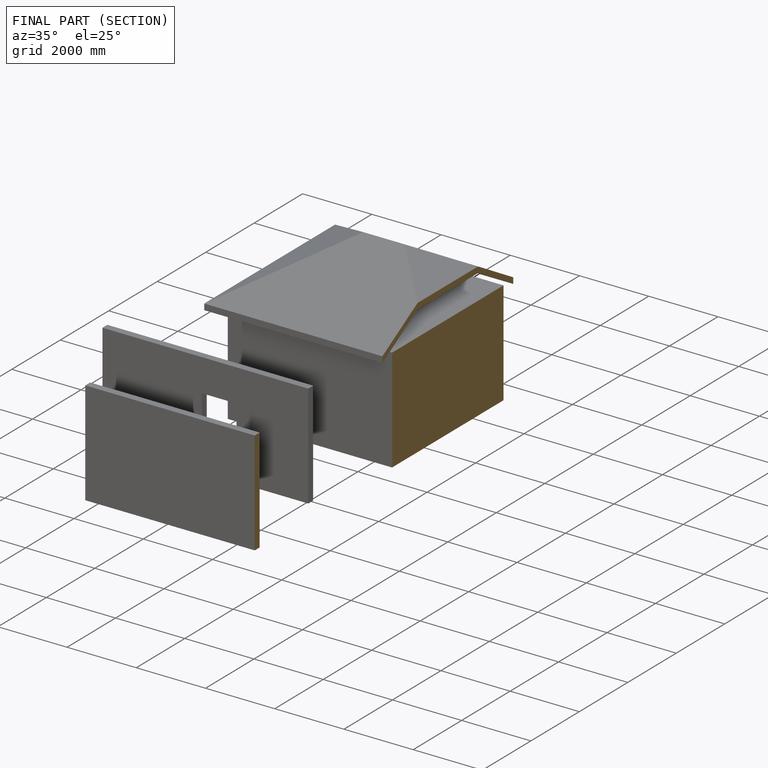
[diagram: finished part — half-section view (interior)]
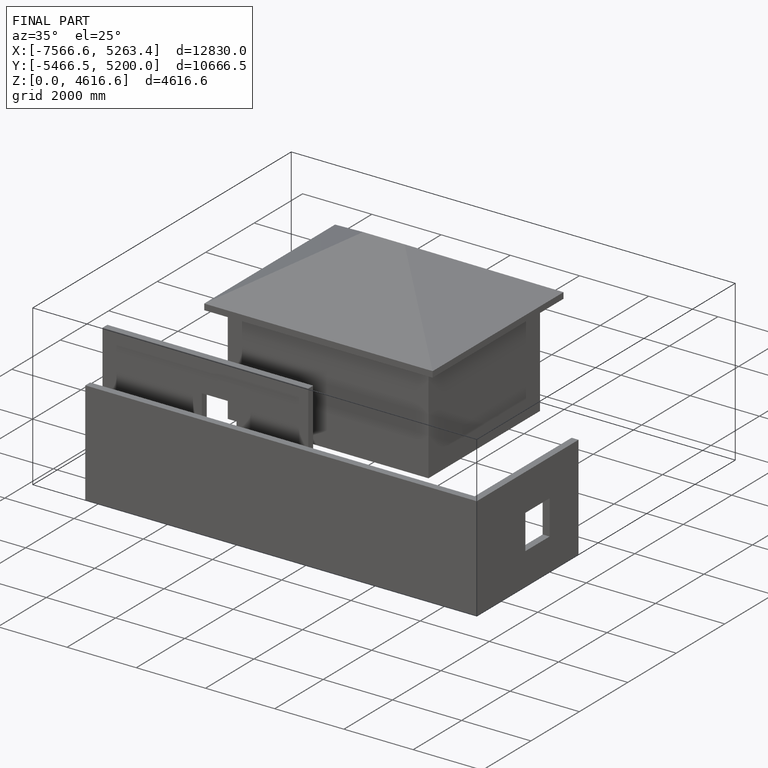
[diagram: finished part — iso view with bounding-box wireframe]
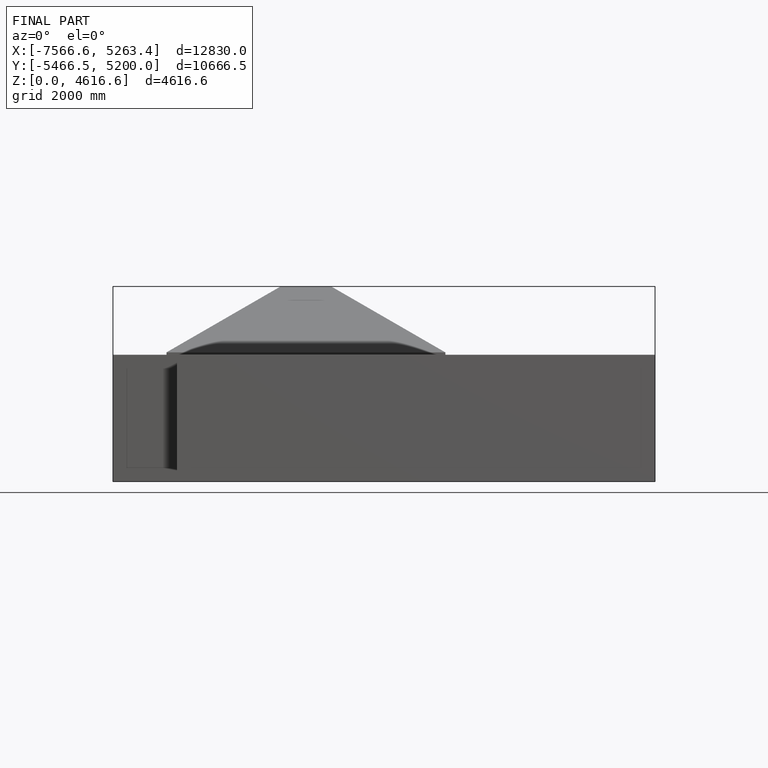
[diagram: finished part — front view with bounding-box wireframe]
